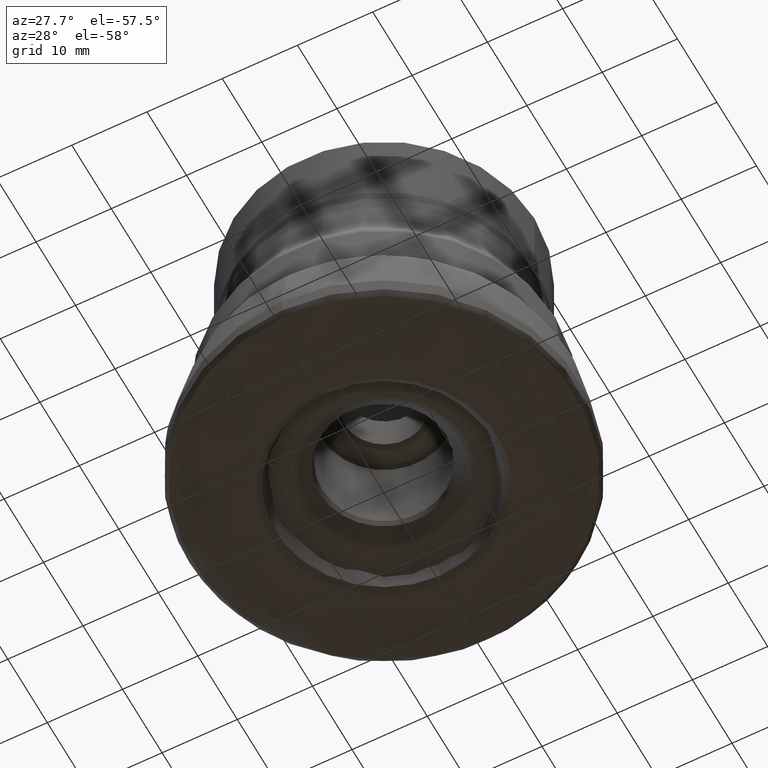
[diagram: clean part render]
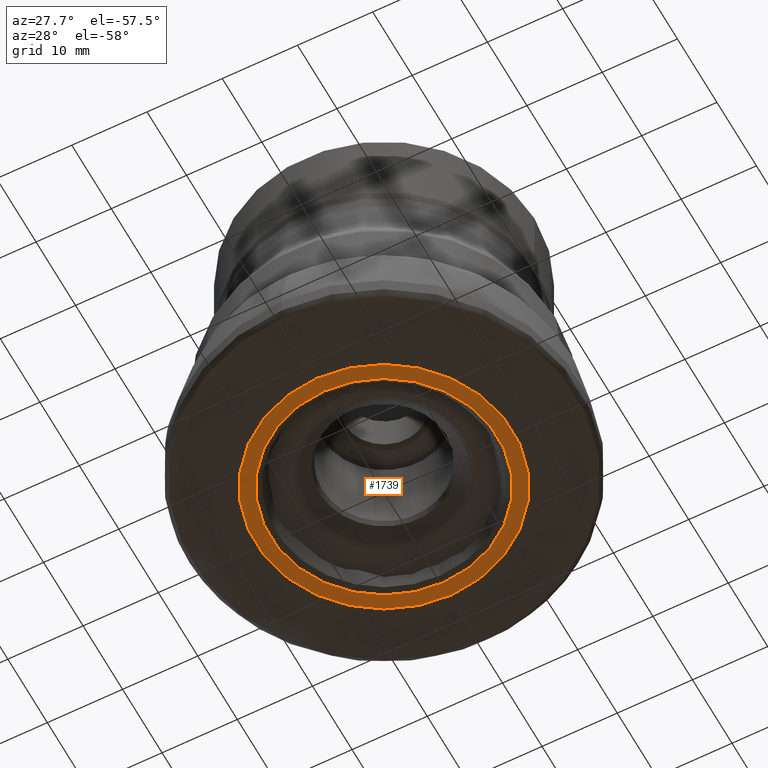
[diagram: same view with one face highlighted and labeled with its STEP entity id]
A machine part, auxiliary view. The second image highlights one B-rep face of the part: STEP entity #1739.
In plain terms, the highlighted planar face has unit normal (-0, 0, -1).
Its self-contained STEP definition (entity closure, byte-faithful):
#22 = CARTESIAN_POINT ( 'NONE',  ( 1.054746673613838000E-013, -15.10457269067514800, -0.009049119676597506800 ) ) ;
#99 = PLANE ( 'NONE',  #1357 ) ;
#100 = CARTESIAN_POINT ( 'NONE',  ( 0.0000000000000000000, -17.06473956484177300, -0.009049119679068086100 ) ) ;
#133 = DIRECTION ( 'NONE',  ( -0.0000000000000000000, 1.249000902703301100E-016, -1.000000000000000000 ) ) ;
#341 = EDGE_LOOP ( 'NONE', ( #1699, #1262 ) ) ;
#512 = DIRECTION ( 'NONE',  ( -0.0000000000000000000, 1.249000902703301100E-016, -1.000000000000000000 ) ) ;
#535 = VERTEX_POINT ( 'NONE', #1260 ) ;
#649 = CIRCLE ( 'NONE', #1282, 17.06473956484177300 ) ;
#674 = CARTESIAN_POINT ( 'NONE',  ( 0.0000000000000000000, 17.06473956484177300, -0.009049119679069319400 ) ) ;
#780 = VERTEX_POINT ( 'NONE', #1683 ) ;
#927 = DIRECTION ( 'NONE',  ( 0.0000000000000000000, 1.000000000000000000, 1.249415951798254300E-016 ) ) ;
#938 = EDGE_CURVE ( 'NONE', #780, #535, #2257, .T. ) ;
#1243 = CARTESIAN_POINT ( 'NONE',  ( 0.0000000000000000000, 1.130235864164192300E-018, -0.009049119674116670000 ) ) ;
#1260 = CARTESIAN_POINT ( 'NONE',  ( 0.0000000000000000000, -15.10457269067515500, -0.009049119674118555700 ) ) ;
#1262 = ORIENTED_EDGE ( 'NONE', *, *, #938, .T. ) ;
#1282 = AXIS2_PLACEMENT_3D ( 'NONE', #2184, #133, #1869 ) ;
#1315 = DIRECTION ( 'NONE',  ( 0.0000000000000000000, 1.000000000000000000, 1.249415951798253800E-016 ) ) ;
#1339 = CIRCLE ( 'NONE', #2115, 15.10457269067515000 ) ;
#1357 = AXIS2_PLACEMENT_3D ( 'NONE', #22, #1591, #2732 ) ;
#1474 = FACE_OUTER_BOUND ( 'NONE', #2482, .T. ) ;
#1545 = FACE_BOUND ( 'NONE', #341, .T. ) ;
#1591 = DIRECTION ( 'NONE',  ( 0.0000000000000000000, -1.249000902703301100E-016, 1.000000000000000000 ) ) ;
#1683 = CARTESIAN_POINT ( 'NONE',  ( 0.0000000000000000000, 15.10457269067515000, -0.009049119674117905200 ) ) ;
#1699 = ORIENTED_EDGE ( 'NONE', *, *, #1709, .T. ) ;
#1709 = EDGE_CURVE ( 'NONE', #535, #780, #1339, .T. ) ;
#1739 = ADVANCED_FACE ( 'NONE', ( #1474, #1545 ), #99, .T. ) ;
#1839 = CARTESIAN_POINT ( 'NONE',  ( 0.0000000000000000000, 1.130235864164581900E-018, -0.009049119674119790800 ) ) ;
#1869 = DIRECTION ( 'NONE',  ( 0.0000000000000000000, 1.000000000000000000, 1.248852868333581300E-016 ) ) ;
#1880 = EDGE_CURVE ( 'NONE', #2660, #2156, #2476, .T. ) ;
#2115 = AXIS2_PLACEMENT_3D ( 'NONE', #1839, #2522, #927 ) ;
#2117 = EDGE_CURVE ( 'NONE', #2156, #2660, #649, .T. ) ;
#2156 = VERTEX_POINT ( 'NONE', #674 ) ;
#2184 = CARTESIAN_POINT ( 'NONE',  ( 0.0000000000000000000, 1.130235864782358400E-018, -0.009049119679065954100 ) ) ;
#2257 = CIRCLE ( 'NONE', #2280, 15.10457269067515500 ) ;
#2280 = AXIS2_PLACEMENT_3D ( 'NONE', #1243, #512, #1315 ) ;
#2301 = ORIENTED_EDGE ( 'NONE', *, *, #2117, .F. ) ;
#2314 = CARTESIAN_POINT ( 'NONE',  ( 0.0000000000000000000, 1.130235864783044700E-018, -0.009049119679071449700 ) ) ;
#2476 = CIRCLE ( 'NONE', #2492, 17.06473956484177300 ) ;
#2482 = EDGE_LOOP ( 'NONE', ( #2701, #2301 ) ) ;
#2492 = AXIS2_PLACEMENT_3D ( 'NONE', #2314, #2546, #2688 ) ;
#2522 = DIRECTION ( 'NONE',  ( -0.0000000000000000000, 1.249000902703301100E-016, -1.000000000000000000 ) ) ;
#2546 = DIRECTION ( 'NONE',  ( -0.0000000000000000000, 1.249000902703301100E-016, -1.000000000000000000 ) ) ;
#2660 = VERTEX_POINT ( 'NONE', #100 ) ;
#2688 = DIRECTION ( 'NONE',  ( 0.0000000000000000000, 1.000000000000000000, 1.248852868333581300E-016 ) ) ;
#2701 = ORIENTED_EDGE ( 'NONE', *, *, #1880, .F. ) ;
#2732 = DIRECTION ( 'NONE',  ( 0.0000000000000000000, -1.000000000000000000, -1.249000902703301100E-016 ) ) ;